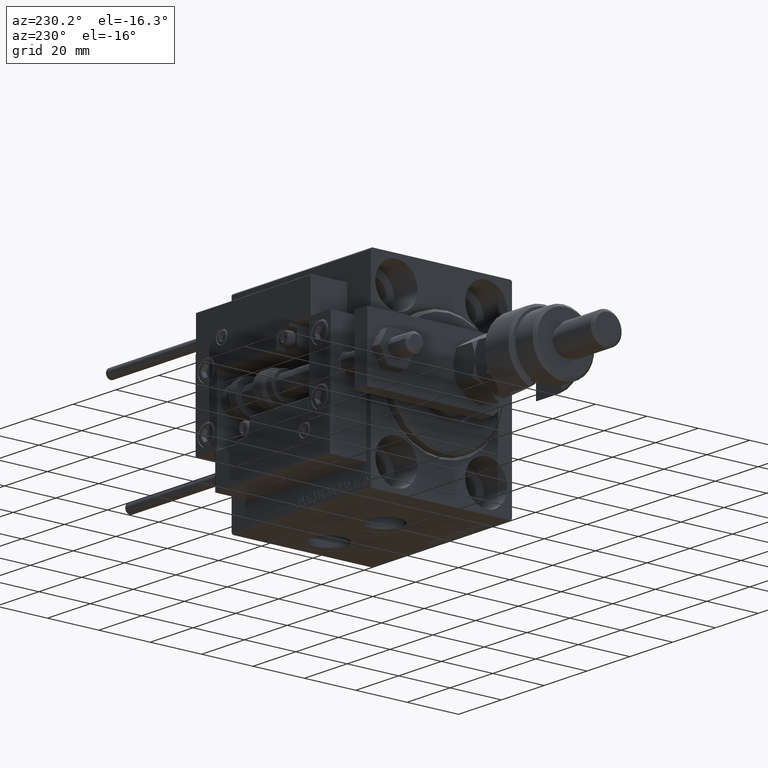
[diagram: clean part render]
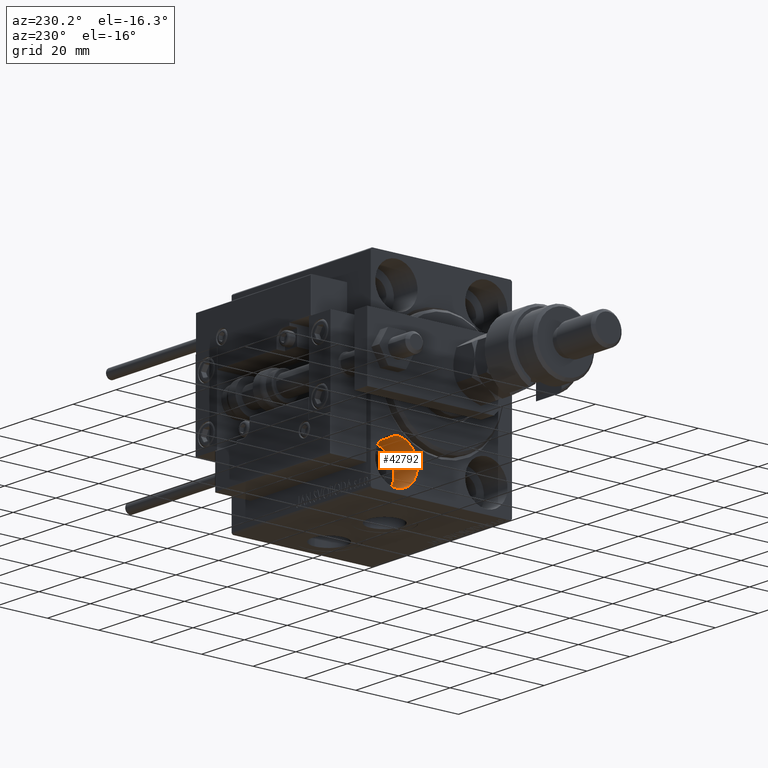
[diagram: same view with one face highlighted and labeled with its STEP entity id]
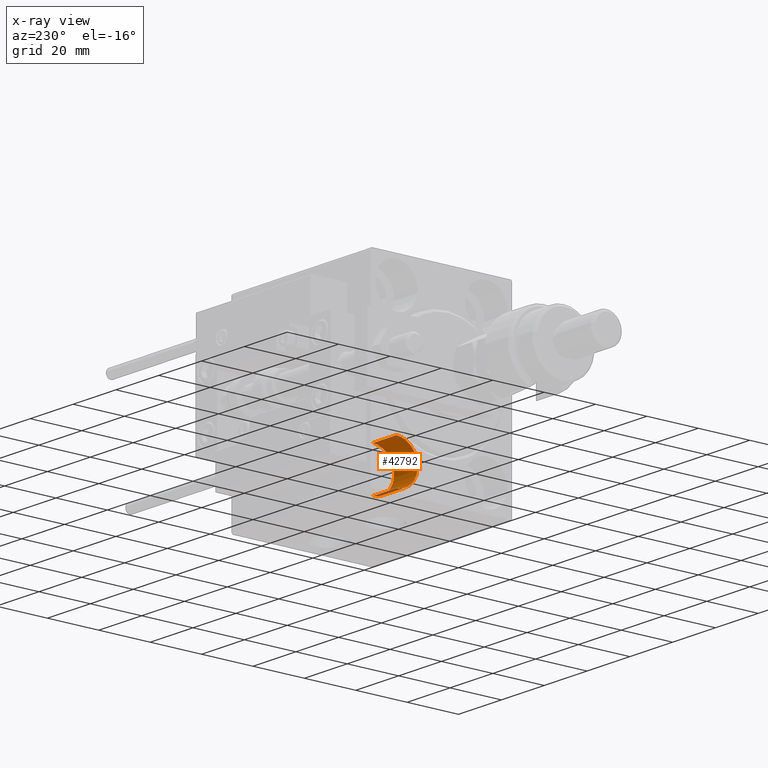
[diagram: x-ray of the same camera — body ghosted, the highlighted face saturated]
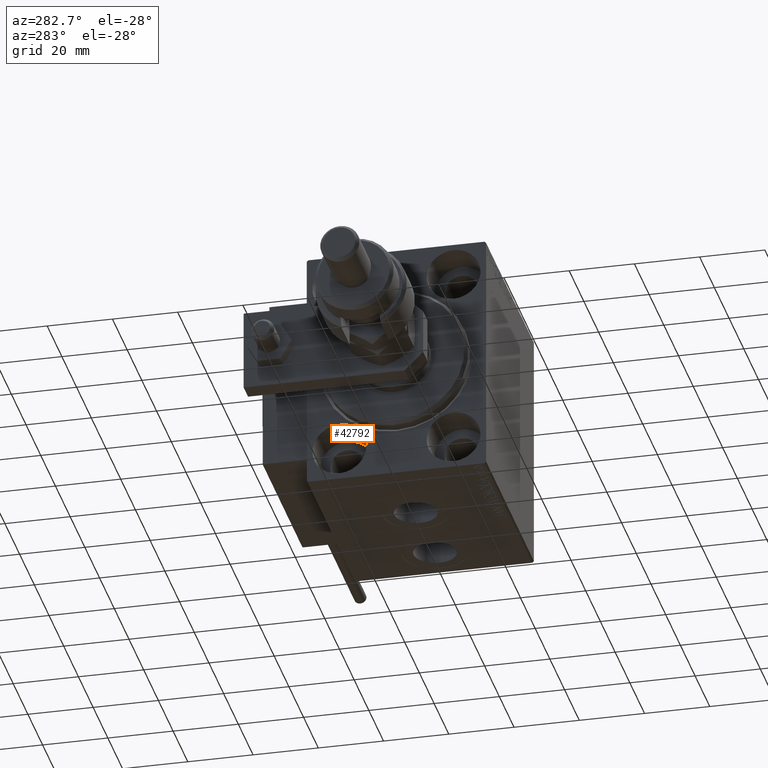
[diagram: same view with one face highlighted and labeled with its STEP entity id]
A machine part, auxiliary view. The second image highlights one B-rep face of the part: STEP entity #42792.
The next image is the same camera in x-ray: the body ghosted, the highlighted face saturated — about 0% of this face is hidden behind the body in this view.
A second angle (auxiliary view) of the same face is appended — the face is thin or edge-on in the first view.
In plain terms, the highlighted cylindrical surface (edge-blend (fillet) strip) has radius 8.25 mm, axis along (-1, -0, -0).
Its self-contained STEP definition (entity closure, byte-faithful):
#748 = VERTEX_POINT ( 'NONE', #2796 ) ;
#1795 = CARTESIAN_POINT ( 'NONE',  ( 11.00000000000000000, 17.49999999999999645, -35.75000000000000711 ) ) ;
#2484 = LINE ( 'NONE', #52432, #39029 ) ;
#2796 = CARTESIAN_POINT ( 'NONE',  ( 0.000000000000000000, 17.49999999999999645, -19.25000000000000355 ) ) ;
#3196 = CARTESIAN_POINT ( 'NONE',  ( 0.000000000000000000, 17.49999999999999645, -27.50000000000000355 ) ) ;
#5976 = DIRECTION ( 'NONE',  ( 0.000000000000000000, 0.000000000000000000, 1.000000000000000000 ) ) ;
#6567 = EDGE_CURVE ( 'NONE', #45373, #16611, #14682, .T. ) ;
#7587 = DIRECTION ( 'NONE',  ( -1.000000000000000000, 0.000000000000000000, 0.000000000000000000 ) ) ;
#9423 = VECTOR ( 'NONE', #18540, 1000.000000000000000 ) ;
#10632 = CARTESIAN_POINT ( 'NONE',  ( 11.00000000000000000, 17.49999999999999645, -27.50000000000000355 ) ) ;
#11211 = AXIS2_PLACEMENT_3D ( 'NONE', #3196, #7587, #36664 ) ;
#11532 = DIRECTION ( 'NONE',  ( -1.000000000000000000, -0.000000000000000000, -0.000000000000000000 ) ) ;
#14682 = LINE ( 'NONE', #1795, #9423 ) ;
#15053 = DIRECTION ( 'NONE',  ( 0.000000000000000000, 0.000000000000000000, 1.000000000000000000 ) ) ;
#16611 = VERTEX_POINT ( 'NONE', #20303 ) ;
#18540 = DIRECTION ( 'NONE',  ( -1.000000000000000000, -0.000000000000000000, -0.000000000000000000 ) ) ;
#18857 = FACE_OUTER_BOUND ( 'NONE', #22436, .T. ) ;
#19282 = ORIENTED_EDGE ( 'NONE', *, *, #6567, .T. ) ;
#20303 = CARTESIAN_POINT ( 'NONE',  ( 0.000000000000000000, 17.49999999999999645, -35.75000000000000711 ) ) ;
#22436 = EDGE_LOOP ( 'NONE', ( #24685, #19282, #47509, #48468 ) ) ;
#23873 = CARTESIAN_POINT ( 'NONE',  ( 11.00000000000000000, 17.49999999999999645, -19.25000000000000355 ) ) ;
#23960 = CIRCLE ( 'NONE', #30957, 8.250000000000000000 ) ;
#24685 = ORIENTED_EDGE ( 'NONE', *, *, #29889, .F. ) ;
#29889 = EDGE_CURVE ( 'NONE', #45373, #49892, #23960, .T. ) ;
#30957 = AXIS2_PLACEMENT_3D ( 'NONE', #36448, #40029, #15053 ) ;
#33470 = EDGE_CURVE ( 'NONE', #49892, #748, #2484, .T. ) ;
#34864 = CIRCLE ( 'NONE', #11211, 8.250000000000000000 ) ;
#36448 = CARTESIAN_POINT ( 'NONE',  ( 11.00000000000000000, 17.49999999999999645, -27.50000000000000355 ) ) ;
#36664 = DIRECTION ( 'NONE',  ( 0.000000000000000000, 0.000000000000000000, 1.000000000000000000 ) ) ;
#39029 = VECTOR ( 'NONE', #11532, 1000.000000000000000 ) ;
#40029 = DIRECTION ( 'NONE',  ( -1.000000000000000000, 0.000000000000000000, 0.000000000000000000 ) ) ;
#42792 = ADVANCED_FACE ( 'NONE', ( #18857 ), #52329, .F. ) ;
#42899 = EDGE_CURVE ( 'NONE', #16611, #748, #34864, .T. ) ;
#44160 = CARTESIAN_POINT ( 'NONE',  ( 11.00000000000000000, 17.49999999999999645, -35.75000000000000711 ) ) ;
#44500 = AXIS2_PLACEMENT_3D ( 'NONE', #10632, #47652, #5976 ) ;
#45373 = VERTEX_POINT ( 'NONE', #44160 ) ;
#47509 = ORIENTED_EDGE ( 'NONE', *, *, #42899, .T. ) ;
#47652 = DIRECTION ( 'NONE',  ( -1.000000000000000000, -0.000000000000000000, -0.000000000000000000 ) ) ;
#48468 = ORIENTED_EDGE ( 'NONE', *, *, #33470, .F. ) ;
#49892 = VERTEX_POINT ( 'NONE', #23873 ) ;
#52329 = CYLINDRICAL_SURFACE ( 'NONE', #44500, 8.250000000000000000 ) ;
#52432 = CARTESIAN_POINT ( 'NONE',  ( 11.00000000000000000, 17.49999999999999645, -19.25000000000000355 ) ) ;